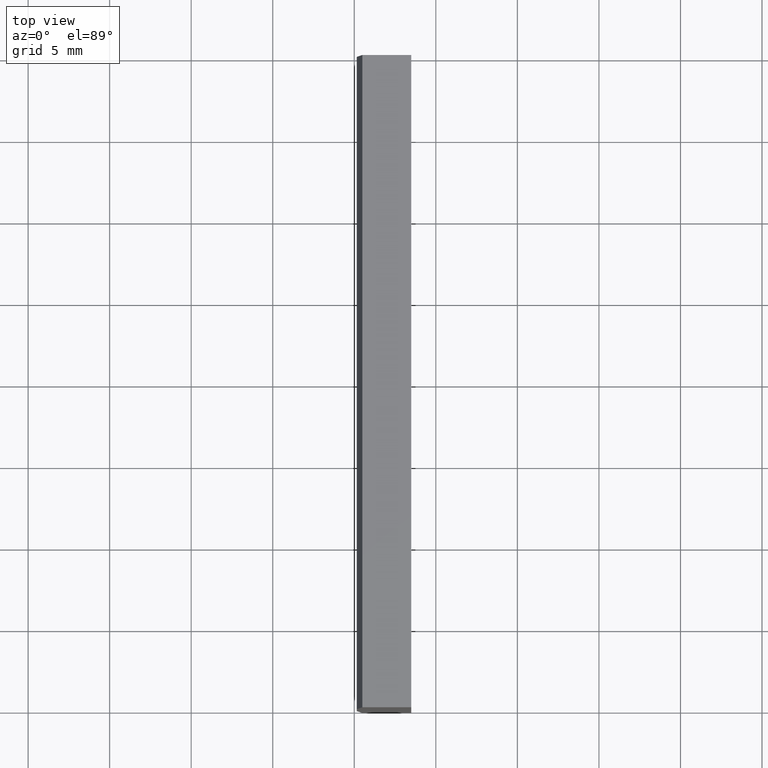
[diagram: clean part render]
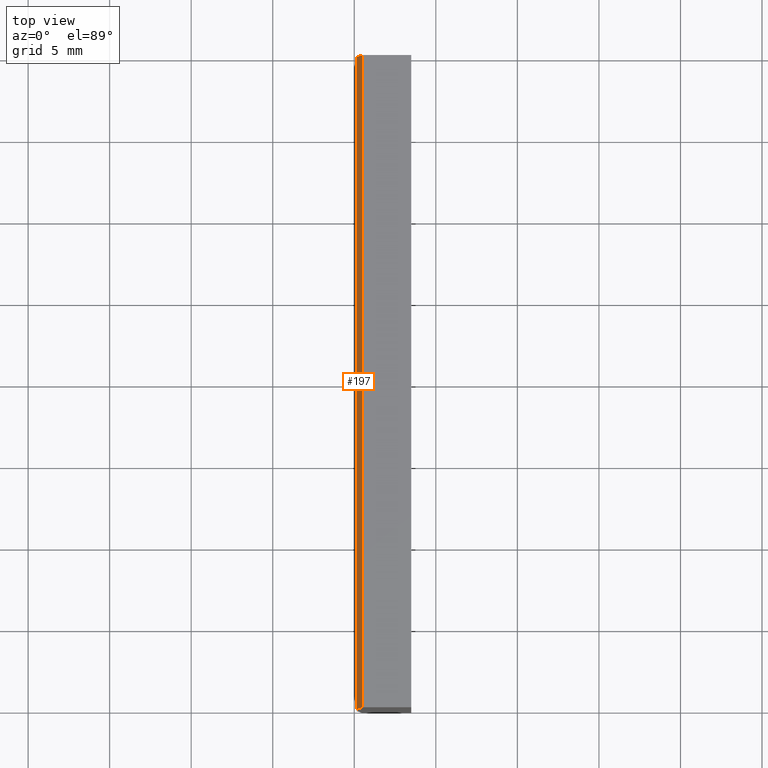
[diagram: same view with one face highlighted and labeled with its STEP entity id]
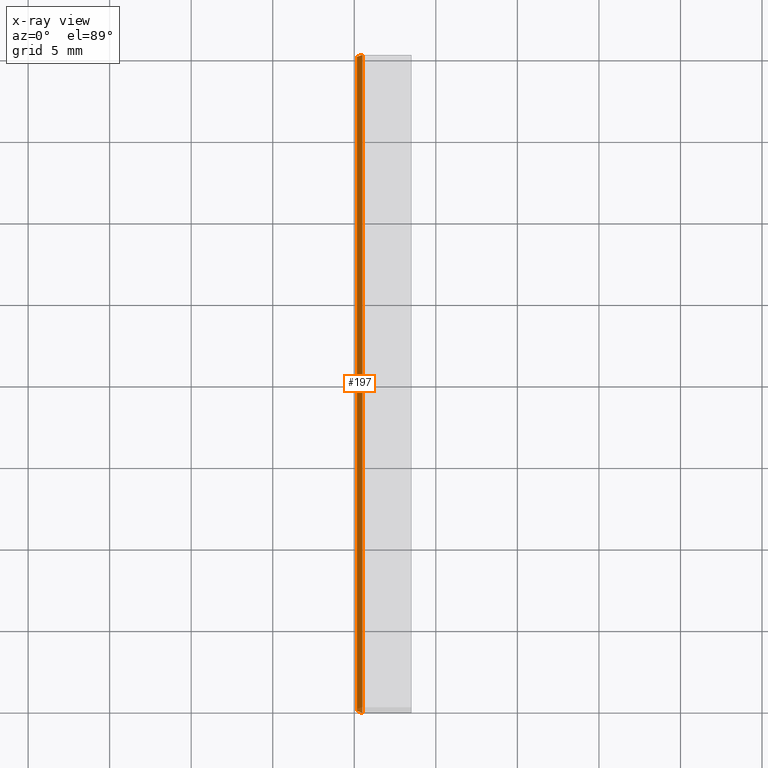
[diagram: x-ray of the same camera — body ghosted, the highlighted face saturated]
A machine part, top view. The second image highlights one B-rep face of the part: STEP entity #197.
The next image is the same camera in x-ray: the body ghosted, the highlighted face saturated — about 0% of this face is hidden behind the body in this view.
In plain terms, the highlighted cylindrical surface (partial cylindrical patch) has radius 129.25 mm, axis along (-0, -1, -0).
Its self-contained STEP definition (entity closure, byte-faithful):
#9 = VERTEX_POINT ( 'NONE', #43 ) ;
#14 = CARTESIAN_POINT ( 'NONE',  ( -124.5073678108264900, 0.0000000000000000000, -10.00000000000000000 ) ) ;
#16 = AXIS2_PLACEMENT_3D ( 'NONE', #196, #189, #63 ) ;
#17 = DIRECTION ( 'NONE',  ( -0.0000000000000000000, -1.000000000000000000, -0.0000000000000000000 ) ) ;
#25 = CIRCLE ( 'NONE', #193, 129.2500000000000000 ) ;
#33 = VECTOR ( 'NONE', #17, 1000.000000000000000 ) ;
#36 = CARTESIAN_POINT ( 'NONE',  ( -124.5073678108264800, 40.00000000000000000, 10.00000000000000000 ) ) ;
#37 = CARTESIAN_POINT ( 'NONE',  ( -124.5073678108264800, 40.00000000000000000, 10.00000000000000000 ) ) ;
#42 = EDGE_CURVE ( 'NONE', #120, #172, #134, .T. ) ;
#43 = CARTESIAN_POINT ( 'NONE',  ( -124.5073678108264800, 0.0000000000000000000, 10.00000000000000000 ) ) ;
#55 = EDGE_CURVE ( 'NONE', #120, #175, #159, .T. ) ;
#56 = DIRECTION ( 'NONE',  ( -0.0000000000000000000, -1.000000000000000000, -0.0000000000000000000 ) ) ;
#58 = ORIENTED_EDGE ( 'NONE', *, *, #42, .T. ) ;
#63 = DIRECTION ( 'NONE',  ( 0.0000000000000000000, 0.0000000000000000000, 1.000000000000000000 ) ) ;
#70 = LINE ( 'NONE', #37, #133 ) ;
#92 = EDGE_LOOP ( 'NONE', ( #110, #203, #185, #58 ) ) ;
#110 = ORIENTED_EDGE ( 'NONE', *, *, #132, .T. ) ;
#114 = CYLINDRICAL_SURFACE ( 'NONE', #119, 129.2500000000000000 ) ;
#115 = DIRECTION ( 'NONE',  ( 0.0000000000000000000, 0.0000000000000000000, -1.000000000000000000 ) ) ;
#119 = AXIS2_PLACEMENT_3D ( 'NONE', #135, #129, #115 ) ;
#120 = VERTEX_POINT ( 'NONE', #153 ) ;
#121 = EDGE_CURVE ( 'NONE', #175, #9, #70, .T. ) ;
#129 = DIRECTION ( 'NONE',  ( -0.0000000000000000000, -1.000000000000000000, -0.0000000000000000000 ) ) ;
#130 = CARTESIAN_POINT ( 'NONE',  ( -124.5073678108264900, 40.00000000000000000, -10.00000000000000000 ) ) ;
#132 = EDGE_CURVE ( 'NONE', #172, #9, #25, .T. ) ;
#133 = VECTOR ( 'NONE', #56, 1000.000000000000000 ) ;
#134 = LINE ( 'NONE', #130, #33 ) ;
#135 = CARTESIAN_POINT ( 'NONE',  ( 4.355204334851265500, 40.00000000000000000, 4.286263797015675000E-017 ) ) ;
#137 = FACE_OUTER_BOUND ( 'NONE', #92, .T. ) ;
#153 = CARTESIAN_POINT ( 'NONE',  ( -124.5073678108264900, 40.00000000000000000, -10.00000000000000000 ) ) ;
#159 = CIRCLE ( 'NONE', #16, 129.2500000000000000 ) ;
#172 = VERTEX_POINT ( 'NONE', #14 ) ;
#175 = VERTEX_POINT ( 'NONE', #36 ) ;
#179 = DIRECTION ( 'NONE',  ( 0.0000000000000000000, 0.0000000000000000000, 1.000000000000000000 ) ) ;
#184 = CARTESIAN_POINT ( 'NONE',  ( 4.355204334851265500, 0.0000000000000000000, 4.286263797015675000E-017 ) ) ;
#185 = ORIENTED_EDGE ( 'NONE', *, *, #55, .F. ) ;
#186 = DIRECTION ( 'NONE',  ( 0.0000000000000000000, 1.000000000000000000, 0.0000000000000000000 ) ) ;
#189 = DIRECTION ( 'NONE',  ( 0.0000000000000000000, 1.000000000000000000, 0.0000000000000000000 ) ) ;
#193 = AXIS2_PLACEMENT_3D ( 'NONE', #184, #186, #179 ) ;
#196 = CARTESIAN_POINT ( 'NONE',  ( 4.355204334851265500, 40.00000000000000000, 4.286263797015675000E-017 ) ) ;
#197 = ADVANCED_FACE ( 'NONE', ( #137 ), #114, .T. ) ;
#203 = ORIENTED_EDGE ( 'NONE', *, *, #121, .F. ) ;